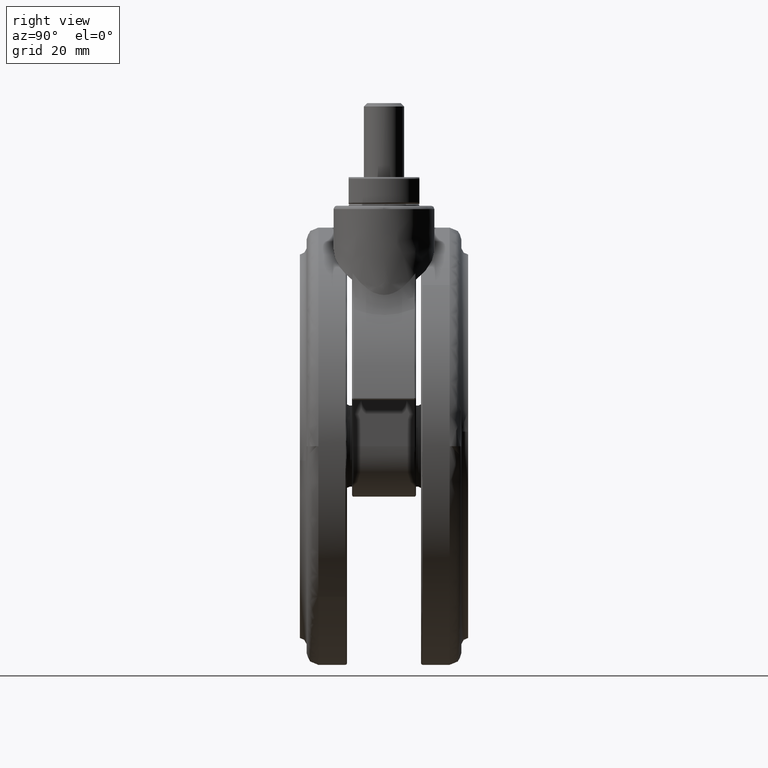
[diagram: clean part render]
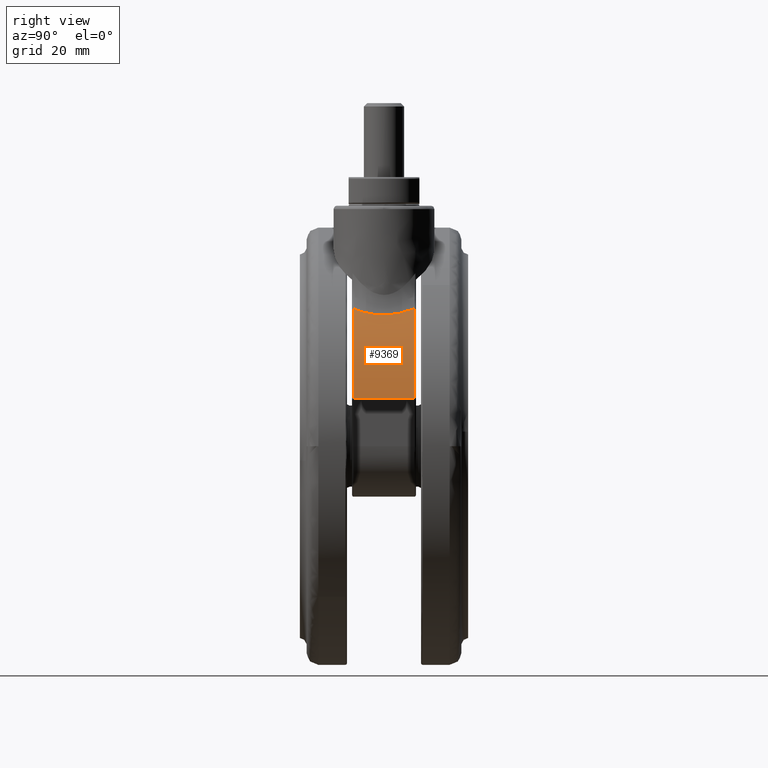
[diagram: same view with one face highlighted and labeled with its STEP entity id]
A machine part, right view. The second image highlights one B-rep face of the part: STEP entity #9369.
In plain terms, the highlighted face is a freeform B-spline surface patch.
Its self-contained STEP definition (entity closure, byte-faithful):
#7323=CARTESIAN_POINT('',(15.547299902130201,9.0,-30.634727792364750));
#7324=VERTEX_POINT('',#7323);
#7338=CARTESIAN_POINT('',(28.405218092751301,9.0,-57.189922480620197));
#7339=VERTEX_POINT('',#7338);
#7340=CARTESIAN_POINT('',(28.405218092751191,9.0,-57.189922480620240));
#7341=CARTESIAN_POINT('',(25.070435314645088,9.0,-42.414137440223577));
#7342=CARTESIAN_POINT('',(15.547299902130121,9.0,-30.634727792364860));
#7350=(BOUNDED_CURVE()B_SPLINE_CURVE(2,(#7340,#7341,#7342),.UNSPECIFIED.,.F.,.U.)CURVE()GEOMETRIC_REPRESENTATION_ITEM()QUASI_UNIFORM_CURVE()RATIONAL_B_SPLINE_CURVE((1.0,0.973904955536458,1.0))REPRESENTATION_ITEM(''));
#7351=EDGE_CURVE('',#7339,#7324,#7350,.T.);
#7551=CARTESIAN_POINT('',(15.547299902130250,-8.999999999999799,-30.634727792364750));
#7552=VERTEX_POINT('',#7551);
#7579=CARTESIAN_POINT('',(28.405218092751301,-8.999999999999789,-57.189922480620197));
#7580=VERTEX_POINT('',#7579);
#7594=CARTESIAN_POINT('',(15.547299902130250,-8.999999999999799,-30.634727792364750));
#7595=CARTESIAN_POINT('',(25.070435314645067,-8.999999999999789,-42.414137440223556));
#7596=CARTESIAN_POINT('',(28.405218092751181,-8.999999999999789,-57.189922480620218));
#7604=(BOUNDED_CURVE()B_SPLINE_CURVE(2,(#7594,#7595,#7596),.UNSPECIFIED.,.F.,.U.)CURVE()GEOMETRIC_REPRESENTATION_ITEM()QUASI_UNIFORM_CURVE()RATIONAL_B_SPLINE_CURVE((1.0,0.973904955536458,1.0))REPRESENTATION_ITEM(''));
#7605=EDGE_CURVE('',#7552,#7580,#7604,.T.);
#9032=CARTESIAN_POINT('',(15.547299902130201,9.0,-30.634727792364750));
#9033=CARTESIAN_POINT('',(15.778308695220950,8.309230174462316,-30.920468474209891));
#9034=CARTESIAN_POINT('',(15.984286520849340,7.602238706493807,-31.180184750218601));
#9035=CARTESIAN_POINT('',(16.253973787598571,6.514689196457765,-31.524364740078251));
#9036=CARTESIAN_POINT('',(16.337307746508589,6.147652581413912,-31.631510227453859));
#9037=CARTESIAN_POINT('',(16.452095167155349,5.589878103658558,-31.779906674822289));
#9038=CARTESIAN_POINT('',(16.488654222153318,5.402749278734215,-31.827317358962791));
#9039=CARTESIAN_POINT('',(16.558288655597259,5.026000911960466,-31.917855888658170));
#9040=CARTESIAN_POINT('',(16.591398736103098,4.836156018075466,-31.961029187195649));
#9041=CARTESIAN_POINT('',(16.747406559656682,3.884362732569135,-32.164925345392078));
#9042=CARTESIAN_POINT('',(16.842049839895839,3.113561998046700,-32.290141946231699));
#9043=CARTESIAN_POINT('',(16.921322683700989,2.137585213320500,-32.395307896143372));
#9044=CARTESIAN_POINT('',(16.935229580620032,1.941619384031075,-32.413783494727248));
#9045=CARTESIAN_POINT('',(16.959040013665341,1.549050898597289,-32.445441326945087));
#9046=CARTESIAN_POINT('',(16.968913519342909,1.352995068125297,-32.458583540842270));
#9047=CARTESIAN_POINT('',(16.992505925010018,0.765507311299708,-32.490001105983950));
#9048=CARTESIAN_POINT('',(17.000200182032710,0.374755003049301,-32.500266909319997));
#9049=CARTESIAN_POINT('',(16.999587772664380,-0.794822896265267,-32.499450363668053));
#9050=CARTESIAN_POINT('',(16.967637877009619,-1.570971220038363,-32.456747245747657));
#9051=CARTESIAN_POINT('',(16.873057911516071,-2.729963905731493,-32.331280261596383));
#9052=CARTESIAN_POINT('',(16.833742309832509,-3.115422731329133,-32.279224391621362));
#9053=CARTESIAN_POINT('',(16.763049557579059,-3.692314365992029,-32.186030208196463));
#9054=CARTESIAN_POINT('',(16.737531258930701,-3.884395446138123,-32.152447137602543));
#9055=CARTESIAN_POINT('',(16.682570524393519,-4.268126865946215,-32.080284615194330));
#9056=CARTESIAN_POINT('',(16.653201711023030,-4.459234915357428,-32.041802157748442));
#9057=CARTESIAN_POINT('',(16.497562200416660,-5.408101856255723,-31.838392988425539));
#9058=CARTESIAN_POINT('',(16.344566209713580,-6.148944355324231,-31.639991232091010));
#9059=CARTESIAN_POINT('',(15.985407624693419,-7.598134530829032,-31.181604848589309));
#9060=CARTESIAN_POINT('',(15.779230163026201,-8.306474772182721,-30.921608261295180));
#9061=CARTESIAN_POINT('',(15.547299902130220,-8.999999999999846,-30.634727792364941));
#9062=B_SPLINE_CURVE_WITH_KNOTS('',3,(#9032,#9033,#9034,#9035,#9036,#9037,#9038,#9039,#9040,#9041,#9042,#9043,#9044,#9045,#9046,#9047,#9048,#9049,#9050,#9051,#9052,#9053,#9054,#9055,#9056,#9057,#9058,#9059,#9060,#9061),.UNSPECIFIED.,.F.,.U.,(4,2,2,2,2,2,2,2,2,2,2,2,2,2,4),(0.0,0.125000000000000,0.187499999999999,0.218749999999999,0.249999999999999,0.375000000000000,0.406250000000000,0.437500000000000,0.500000000000001,0.625000000000001,0.687500000000001,0.718750000000001,0.750000000000002,0.875000000000001,1.0),.UNSPECIFIED.);
#9063=EDGE_CURVE('',#7324,#7552,#9062,.T.);
#9345=CARTESIAN_POINT('',(14.611366511797399,9.449999999999998,-29.503424986886049));
#9346=CARTESIAN_POINT('',(14.611366511797399,-9.461249999999801,-29.503424986886049));
#9347=CARTESIAN_POINT('',(25.406177499956890,9.449999999999994,-42.255544039259455));
#9348=CARTESIAN_POINT('',(25.406177499956890,-9.461249999999797,-42.255544039259455));
#9349=CARTESIAN_POINT('',(28.713639295697206,9.449999999999996,-58.632515098210249));
#9350=CARTESIAN_POINT('',(28.713639295697206,-9.461249999999801,-58.632515098210249));
#9358=(BOUNDED_SURFACE()B_SPLINE_SURFACE(1,2,((#9345,#9347,#9349),(#9346,#9348,#9350)),.UNSPECIFIED.,.F.,.F.,.U.)B_SPLINE_SURFACE_WITH_KNOTS((2,2),(3,3),(0.0,18.911249999999800),(0.0,32.880764220858218),.UNSPECIFIED.)GEOMETRIC_REPRESENTATION_ITEM()RATIONAL_B_SPLINE_SURFACE(((0.997621595481633,0.963838549676712,0.992723592307900),(0.997621595481633,0.963838549676712,0.992723592307900)))REPRESENTATION_ITEM('')SURFACE());
#9359=CARTESIAN_POINT('',(28.405218092751301,-8.999999999999789,-57.189922480620197));
#9360=CARTESIAN_POINT('',(28.405218092751301,9.0,-57.189922480620197));
#9361=QUASI_UNIFORM_CURVE('',1,(#9359,#9360),.UNSPECIFIED.,.F.,.U.);
#9362=EDGE_CURVE('',#7580,#7339,#9361,.T.);
#9363=ORIENTED_EDGE('',*,*,#9362,.T.);
#9364=ORIENTED_EDGE('',*,*,#7351,.T.);
#9365=ORIENTED_EDGE('',*,*,#9063,.T.);
#9366=ORIENTED_EDGE('',*,*,#7605,.T.);
#9367=EDGE_LOOP('',(#9363,#9364,#9365,#9366));
#9368=FACE_OUTER_BOUND('',#9367,.T.);
#9369=ADVANCED_FACE('',(#9368),#9358,.T.);